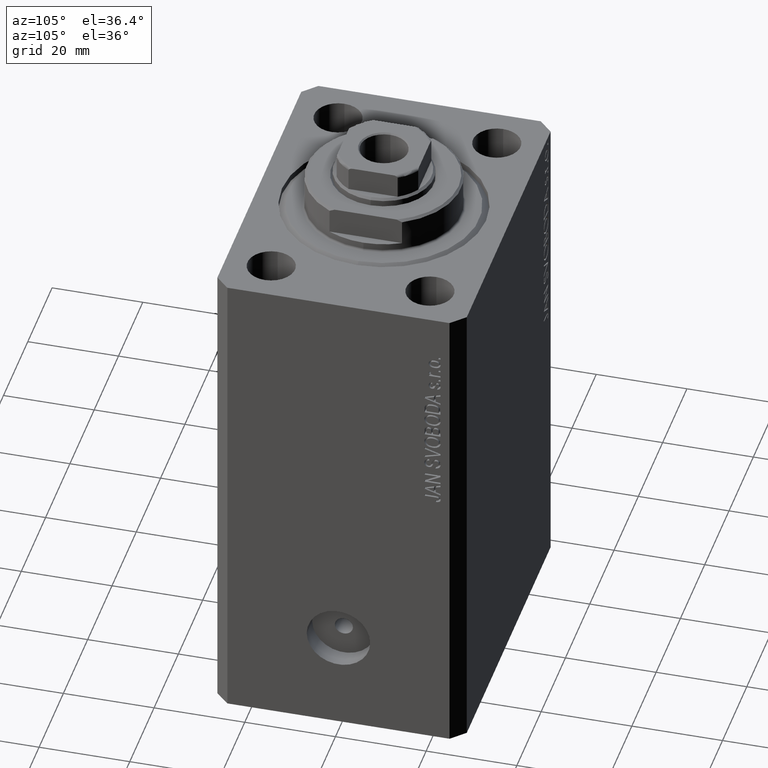
[diagram: clean part render]
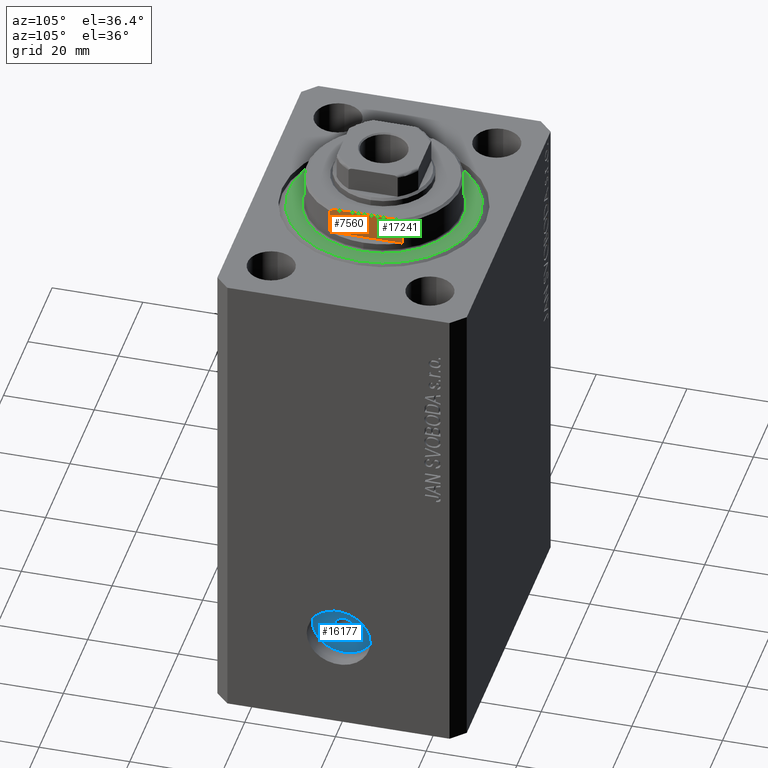
[diagram: same view with three faces highlighted in distinct colors, each labeled with its STEP entity id]
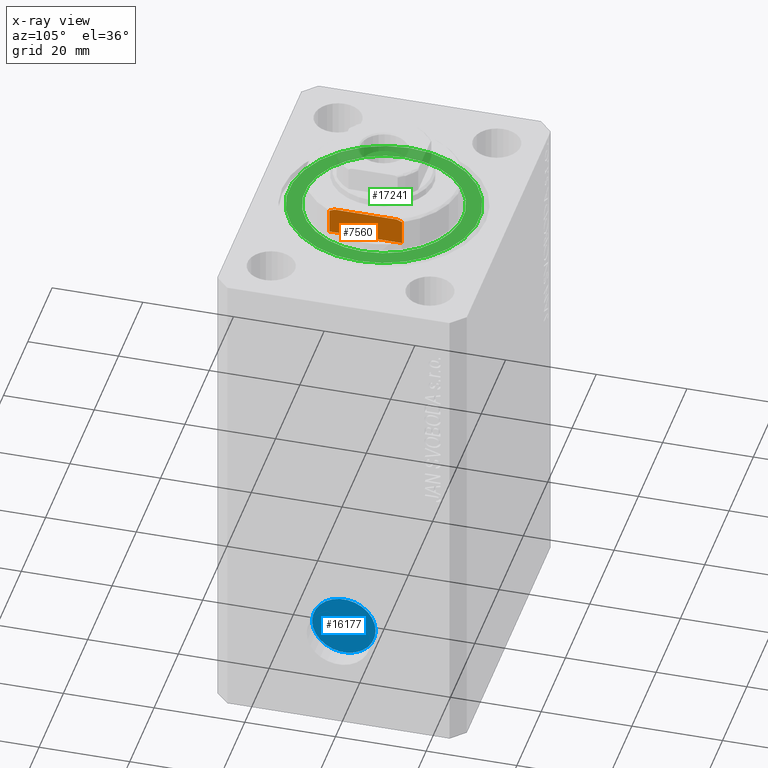
[diagram: x-ray of the same camera — body ghosted, the three highlighted faces saturated]
A machine part, auxiliary view with three faces highlighted in distinct colors.
The next image is the same camera in x-ray (body ghosted, the three faces saturated) — at least one of them is partly hidden behind the body in this view.
Their STEP definitions:

[orange] entity #7560 — the highlighted planar face has unit normal (-1, 0, 0).
#832 = DIRECTION ( 'NONE',  ( -0.000000000000000000, -1.000000000000000000, -0.000000000000000000 ) ) ;
#1755 = DIRECTION ( 'NONE',  ( 0.000000000000000000, 0.000000000000000000, -1.000000000000000000 ) ) ;
#3135 = CARTESIAN_POINT ( 'NONE',  ( -15.00000000000000000, 7.253126193285931222, -7.842000017654665811 ) ) ;
#3210 = ORIENTED_EDGE ( 'NONE', *, *, #7317, .T. ) ;
#3355 = LINE ( 'NONE', #30851, #24724 ) ;
#6307 = CARTESIAN_POINT ( 'NONE',  ( -15.00000000000000000, -8.000000000000001776, -7.500000000000007105 ) ) ;
#6315 = DIRECTION ( 'NONE',  ( 0.000000000000000000, 0.000000000000000000, -1.000000000000000000 ) ) ;
#6455 = AXIS2_PLACEMENT_3D ( 'NONE', #9684, #37176, #6315 ) ;
#7317 = EDGE_CURVE ( 'NONE', #26932, #42718, #43670, .T. ) ;
#7560 = ADVANCED_FACE ( 'NONE', ( #40564 ), #19391, .F. ) ;
#7981 = EDGE_CURVE ( 'NONE', #42718, #8371, #28555, .T. ) ;
#8371 = VERTEX_POINT ( 'NONE', #16014 ) ;
#8885 = CARTESIAN_POINT ( 'NONE',  ( -14.99999999999999645, 6.873863542433765517, -8.000000000000000000 ) ) ;
#9684 = CARTESIAN_POINT ( 'NONE',  ( -15.00000000000000000, -42.42640687119285303, -2.000000000000000000 ) ) ;
#10595 = ORIENTED_EDGE ( 'NONE', *, *, #33289, .F. ) ;
#13592 = VERTEX_POINT ( 'NONE', #29381 ) ;
#15930 = VECTOR ( 'NONE', #1755, 1000.000000000000000 ) ;
#16014 = CARTESIAN_POINT ( 'NONE',  ( -14.99999999999999645, -6.873863542433765517, -8.000000000000000000 ) ) ;
#17098 = CARTESIAN_POINT ( 'NONE',  ( -15.00000000000000000, 8.000000000000001776, -7.500000000000007105 ) ) ;
#17552 = DIRECTION ( 'NONE',  ( -0.000000000000000000, -0.000000000000000000, 1.000000000000000000 ) ) ;
#18409 = CARTESIAN_POINT ( 'NONE',  ( -15.00000000000000000, -42.42640687119285303, -8.000000000000000000 ) ) ;
#18910 = VECTOR ( 'NONE', #41532, 1000.000000000000000 ) ;
#19391 = PLANE ( 'NONE',  #6455 ) ;
#20000 = CARTESIAN_POINT ( 'NONE',  ( -15.00000000000000000, 8.000000000000001776, -7.500000000000007105 ) ) ;
#21828 = CARTESIAN_POINT ( 'NONE',  ( -14.99999999999999645, -6.873863542433765517, -8.000000000000000000 ) ) ;
#21829 = CARTESIAN_POINT ( 'NONE',  ( -15.00000000000000000, -8.000000000000001776, -8.000000000000000000 ) ) ;
#24724 = VECTOR ( 'NONE', #17552, 1000.000000000000000 ) ;
#25204 = VECTOR ( 'NONE', #832, 1000.000000000000000 ) ;
#26932 = VERTEX_POINT ( 'NONE', #20000 ) ;
#27783 = LINE ( 'NONE', #34326, #18910 ) ;
#28555 = LINE ( 'NONE', #18409, #25204 ) ;
#28808 = CARTESIAN_POINT ( 'NONE',  ( -15.00000000000000000, -8.000000000000001776, -7.500000000000007105 ) ) ;
#29381 = CARTESIAN_POINT ( 'NONE',  ( -14.99999999999999645, -8.000000000000003553, -2.000000000000000000 ) ) ;
#29466 = EDGE_CURVE ( 'NONE', #26932, #30936, #3355, .T. ) ;
#30849 = CARTESIAN_POINT ( 'NONE',  ( -15.00000000000000000, 7.628315461082482152, -7.674910371255308839 ) ) ;
#30851 = CARTESIAN_POINT ( 'NONE',  ( -15.00000000000000000, 8.000000000000001776, -8.000000000000000000 ) ) ;
#30936 = VERTEX_POINT ( 'NONE', #41779 ) ;
#31403 = ORIENTED_EDGE ( 'NONE', *, *, #7981, .T. ) ;
#31577 = EDGE_CURVE ( 'NONE', #8371, #36197, #43392, .T. ) ;
#33289 = EDGE_CURVE ( 'NONE', #30936, #13592, #27783, .T. ) ;
#34326 = CARTESIAN_POINT ( 'NONE',  ( -15.00000000000000000, -42.42640687119285303, -2.000000000000000000 ) ) ;
#35720 = ORIENTED_EDGE ( 'NONE', *, *, #29466, .F. ) ;
#36004 = LINE ( 'NONE', #21829, #15930 ) ;
#36197 = VERTEX_POINT ( 'NONE', #6307 ) ;
#36359 = EDGE_CURVE ( 'NONE', #13592, #36197, #36004, .T. ) ;
#36449 = CARTESIAN_POINT ( 'NONE',  ( -15.00000000000000000, -7.629305121525810307, -7.674444648693742543 ) ) ;
#37176 = DIRECTION ( 'NONE',  ( 1.000000000000000000, 0.000000000000000000, 0.000000000000000000 ) ) ;
#40551 = ORIENTED_EDGE ( 'NONE', *, *, #36359, .F. ) ;
#40564 = FACE_OUTER_BOUND ( 'NONE', #44435, .T. ) ;
#41532 = DIRECTION ( 'NONE',  ( -0.000000000000000000, -1.000000000000000000, -0.000000000000000000 ) ) ;
#41779 = CARTESIAN_POINT ( 'NONE',  ( -14.99999999999999645, 8.000000000000003553, -2.000000000000000000 ) ) ;
#42349 = ORIENTED_EDGE ( 'NONE', *, *, #31577, .T. ) ;
#42718 = VERTEX_POINT ( 'NONE', #8885 ) ;
#43222 = CARTESIAN_POINT ( 'NONE',  ( -15.00000000000000000, -7.254193676168128491, -7.841555306644508505 ) ) ;
#43392 = B_SPLINE_CURVE_WITH_KNOTS ( 'NONE', 3,
 ( #21828, #43222, #36449, #28808 ),
 .UNSPECIFIED., .F., .F.,
 ( 4, 4 ),
 ( 0.04875332532859059931, 0.04998905627745663105 ),
 .UNSPECIFIED. ) ;
#43670 = B_SPLINE_CURVE_WITH_KNOTS ( 'NONE', 3,
 ( #17098, #30849, #3135, #44603 ),
 .UNSPECIFIED., .F., .F.,
 ( 4, 4 ),
 ( 0.03336039268697044147, 0.03459498301323850333 ),
 .UNSPECIFIED. ) ;
#44435 = EDGE_LOOP ( 'NONE', ( #3210, #31403, #42349, #40551, #10595, #35720 ) ) ;
#44603 = CARTESIAN_POINT ( 'NONE',  ( -14.99999999999999645, 6.873863542433765517, -8.000000000000000000 ) ) ;

[blue] entity #16177 — the highlighted planar face has unit normal (1, -0, 0).
#29 = ORIENTED_EDGE ( 'NONE', *, *, #27478, .T. ) ;
#416 = CIRCLE ( 'NONE', #40730, 1.999999999999996225 ) ;
#1438 = DIRECTION ( 'NONE',  ( 1.288651725011342390E-14, 1.000000000000000000, 0.000000000000000000 ) ) ;
#1902 = CARTESIAN_POINT ( 'NONE',  ( 33.00000000000034817, 7.000000000000072831, -88.00000000000000000 ) ) ;
#3582 = DIRECTION ( 'NONE',  ( 1.000000000000000000, -1.334402673828349134E-14, 0.000000000000000000 ) ) ;
#5167 = VERTEX_POINT ( 'NONE', #24390 ) ;
#6517 = DIRECTION ( 'NONE',  ( 1.387778780781448358E-14, 1.000000000000000000, 0.000000000000000000 ) ) ;
#8818 = CIRCLE ( 'NONE', #27558, 7.000000000000000000 ) ;
#10392 = ORIENTED_EDGE ( 'NONE', *, *, #19411, .F. ) ;
#10623 = CARTESIAN_POINT ( 'NONE',  ( 33.00000000000025580, 7.279302749271430700E-14, -88.00000000000000000 ) ) ;
#10653 = ORIENTED_EDGE ( 'NONE', *, *, #15571, .F. ) ;
#13398 = AXIS2_PLACEMENT_3D ( 'NONE', #28699, #28926, #17893 ) ;
#13717 = CARTESIAN_POINT ( 'NONE',  ( 33.00000000000025580, 7.279302749271426914E-14, -88.00000000000000000 ) ) ;
#15571 = EDGE_CURVE ( 'NONE', #34121, #5167, #34309, .T. ) ;
#16177 = ADVANCED_FACE ( 'NONE', ( #18333, #42001 ), #28031, .T. ) ;
#17171 = CARTESIAN_POINT ( 'NONE',  ( 33.00000000000017053, -6.999999999999927169, -88.00000000000000000 ) ) ;
#17465 = ORIENTED_EDGE ( 'NONE', *, *, #43146, .T. ) ;
#17893 = DIRECTION ( 'NONE',  ( 1.334402673828349134E-14, 1.000000000000000000, 0.000000000000000000 ) ) ;
#18333 = FACE_BOUND ( 'NONE', #37387, .T. ) ;
#19411 = EDGE_CURVE ( 'NONE', #5167, #34121, #416, .T. ) ;
#19440 = DIRECTION ( 'NONE',  ( 1.387778780781448358E-14, 1.000000000000000000, 0.000000000000000000 ) ) ;
#22802 = EDGE_LOOP ( 'NONE', ( #29, #17465 ) ) ;
#24380 = DIRECTION ( 'NONE',  ( 1.000000000000000000, -1.334402673828349134E-14, 0.000000000000000000 ) ) ;
#24390 = CARTESIAN_POINT ( 'NONE',  ( 33.00000000000022737, -1.999999999999923173, -88.00000000000000000 ) ) ;
#25297 = CARTESIAN_POINT ( 'NONE',  ( 33.00000000000028422, 2.000000000000068834, -88.00000000000000000 ) ) ;
#27478 = EDGE_CURVE ( 'NONE', #41640, #31993, #8818, .T. ) ;
#27558 = AXIS2_PLACEMENT_3D ( 'NONE', #32316, #42904, #1438 ) ;
#28031 = PLANE ( 'NONE',  #13398 ) ;
#28699 = CARTESIAN_POINT ( 'NONE',  ( 33.00000000000025580, 7.279302749271430700E-14, -88.00000000000000000 ) ) ;
#28926 = DIRECTION ( 'NONE',  ( 1.000000000000000000, -1.334402673828349134E-14, 0.000000000000000000 ) ) ;
#31993 = VERTEX_POINT ( 'NONE', #17171 ) ;
#32162 = AXIS2_PLACEMENT_3D ( 'NONE', #13717, #3582, #6517 ) ;
#32316 = CARTESIAN_POINT ( 'NONE',  ( 33.00000000000025580, 7.279302749271430700E-14, -88.00000000000000000 ) ) ;
#34121 = VERTEX_POINT ( 'NONE', #25297 ) ;
#34309 = CIRCLE ( 'NONE', #32162, 1.999999999999996225 ) ;
#36560 = DIRECTION ( 'NONE',  ( 1.000000000000000000, -1.334402673828349134E-14, 0.000000000000000000 ) ) ;
#37387 = EDGE_LOOP ( 'NONE', ( #10653, #10392 ) ) ;
#39281 = CARTESIAN_POINT ( 'NONE',  ( 33.00000000000025580, 7.279302749271426914E-14, -88.00000000000000000 ) ) ;
#40614 = DIRECTION ( 'NONE',  ( 1.288651725011342390E-14, 1.000000000000000000, 0.000000000000000000 ) ) ;
#40730 = AXIS2_PLACEMENT_3D ( 'NONE', #39281, #36560, #19440 ) ;
#41640 = VERTEX_POINT ( 'NONE', #1902 ) ;
#41644 = CIRCLE ( 'NONE', #43839, 7.000000000000000000 ) ;
#42001 = FACE_OUTER_BOUND ( 'NONE', #22802, .T. ) ;
#42904 = DIRECTION ( 'NONE',  ( 1.000000000000000000, -1.334402673828349134E-14, 0.000000000000000000 ) ) ;
#43146 = EDGE_CURVE ( 'NONE', #31993, #41640, #41644, .T. ) ;
#43839 = AXIS2_PLACEMENT_3D ( 'NONE', #10623, #24380, #40614 ) ;

[green] entity #17241 — the highlighted planar face has unit normal (0, 0, -1).
#40 = FACE_OUTER_BOUND ( 'NONE', #9758, .T. ) ;
#238 = ORIENTED_EDGE ( 'NONE', *, *, #10726, .T. ) ;
#523 = DIRECTION ( 'NONE',  ( 1.000000000000000000, 0.000000000000000000, 0.000000000000000000 ) ) ;
#5661 = VERTEX_POINT ( 'NONE', #37522 ) ;
#5718 = ORIENTED_EDGE ( 'NONE', *, *, #23162, .T. ) ;
#7059 = DIRECTION ( 'NONE',  ( 0.000000000000000000, 0.000000000000000000, 1.000000000000000000 ) ) ;
#7113 = EDGE_CURVE ( 'NONE', #5661, #43324, #40272, .T. ) ;
#8324 = DIRECTION ( 'NONE',  ( 0.000000000000000000, 0.000000000000000000, 1.000000000000000000 ) ) ;
#8565 = CARTESIAN_POINT ( 'NONE',  ( 17.50000000000000000, 0.000000000000000000, -2.168404344971008868E-16 ) ) ;
#9758 = EDGE_LOOP ( 'NONE', ( #5718, #43819 ) ) ;
#10726 = EDGE_CURVE ( 'NONE', #43324, #5661, #31314, .T. ) ;
#10822 = CARTESIAN_POINT ( 'NONE',  ( 0.000000000000000000, 0.000000000000000000, 0.000000000000000000 ) ) ;
#11272 = AXIS2_PLACEMENT_3D ( 'NONE', #21993, #29409, #28977 ) ;
#11870 = AXIS2_PLACEMENT_3D ( 'NONE', #35007, #7059, #523 ) ;
#16926 = EDGE_CURVE ( 'NONE', #22621, #23540, #23980, .T. ) ;
#17241 = ADVANCED_FACE ( 'NONE', ( #44461, #40 ), #33867, .F. ) ;
#18946 = AXIS2_PLACEMENT_3D ( 'NONE', #39781, #36394, #19727 ) ;
#19727 = DIRECTION ( 'NONE',  ( 1.000000000000000000, 0.000000000000000000, 0.000000000000000000 ) ) ;
#21993 = CARTESIAN_POINT ( 'NONE',  ( 0.000000000000000000, 0.000000000000000000, 0.000000000000000000 ) ) ;
#22621 = VERTEX_POINT ( 'NONE', #27970 ) ;
#23162 = EDGE_CURVE ( 'NONE', #23540, #22621, #30716, .T. ) ;
#23540 = VERTEX_POINT ( 'NONE', #39718 ) ;
#23980 = CIRCLE ( 'NONE', #18946, 20.99999999999998934 ) ;
#24579 = DIRECTION ( 'NONE',  ( 1.000000000000000000, 0.000000000000000000, 0.000000000000000000 ) ) ;
#27545 = DIRECTION ( 'NONE',  ( 0.000000000000000000, 0.000000000000000000, 1.000000000000000000 ) ) ;
#27970 = CARTESIAN_POINT ( 'NONE',  ( -20.99999999999998934, 2.663606788145492628E-15, 0.000000000000000000 ) ) ;
#28977 = DIRECTION ( 'NONE',  ( 1.000000000000000000, 0.000000000000000000, 0.000000000000000000 ) ) ;
#29409 = DIRECTION ( 'NONE',  ( -0.000000000000000000, -0.000000000000000000, -1.000000000000000000 ) ) ;
#30716 = CIRCLE ( 'NONE', #11272, 20.99999999999998934 ) ;
#31314 = CIRCLE ( 'NONE', #11870, 17.50000000000000000 ) ;
#33344 = AXIS2_PLACEMENT_3D ( 'NONE', #44234, #27545, #40840 ) ;
#33867 = PLANE ( 'NONE',  #33344 ) ;
#34453 = EDGE_LOOP ( 'NONE', ( #238, #36689 ) ) ;
#35007 = CARTESIAN_POINT ( 'NONE',  ( 0.000000000000000000, 0.000000000000000000, 0.000000000000000000 ) ) ;
#36394 = DIRECTION ( 'NONE',  ( -0.000000000000000000, -0.000000000000000000, -1.000000000000000000 ) ) ;
#36689 = ORIENTED_EDGE ( 'NONE', *, *, #7113, .T. ) ;
#37522 = CARTESIAN_POINT ( 'NONE',  ( -17.50000000000000000, 2.143131898507868643E-15, -2.168404344971008868E-16 ) ) ;
#38818 = AXIS2_PLACEMENT_3D ( 'NONE', #10822, #8324, #24579 ) ;
#39718 = CARTESIAN_POINT ( 'NONE',  ( 20.99999999999998934, 0.000000000000000000, 0.000000000000000000 ) ) ;
#39781 = CARTESIAN_POINT ( 'NONE',  ( 0.000000000000000000, 0.000000000000000000, 0.000000000000000000 ) ) ;
#40272 = CIRCLE ( 'NONE', #38818, 17.50000000000000000 ) ;
#40840 = DIRECTION ( 'NONE',  ( 1.000000000000000000, 0.000000000000000000, -0.000000000000000000 ) ) ;
#43324 = VERTEX_POINT ( 'NONE', #8565 ) ;
#43819 = ORIENTED_EDGE ( 'NONE', *, *, #16926, .T. ) ;
#44234 = CARTESIAN_POINT ( 'NONE',  ( 0.000000000000000000, 0.000000000000000000, 0.000000000000000000 ) ) ;
#44461 = FACE_BOUND ( 'NONE', #34453, .T. ) ;